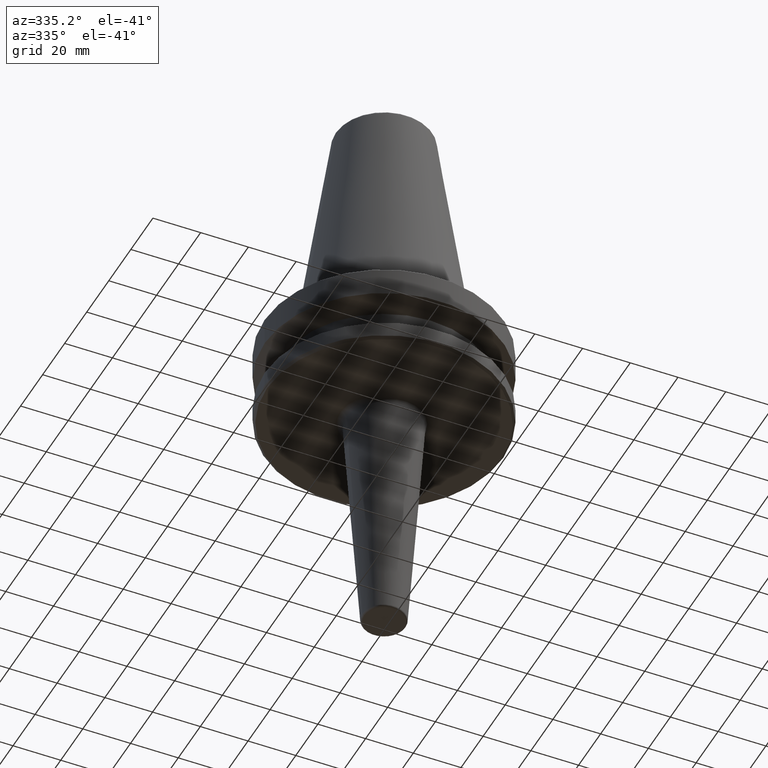
[diagram: clean part render]
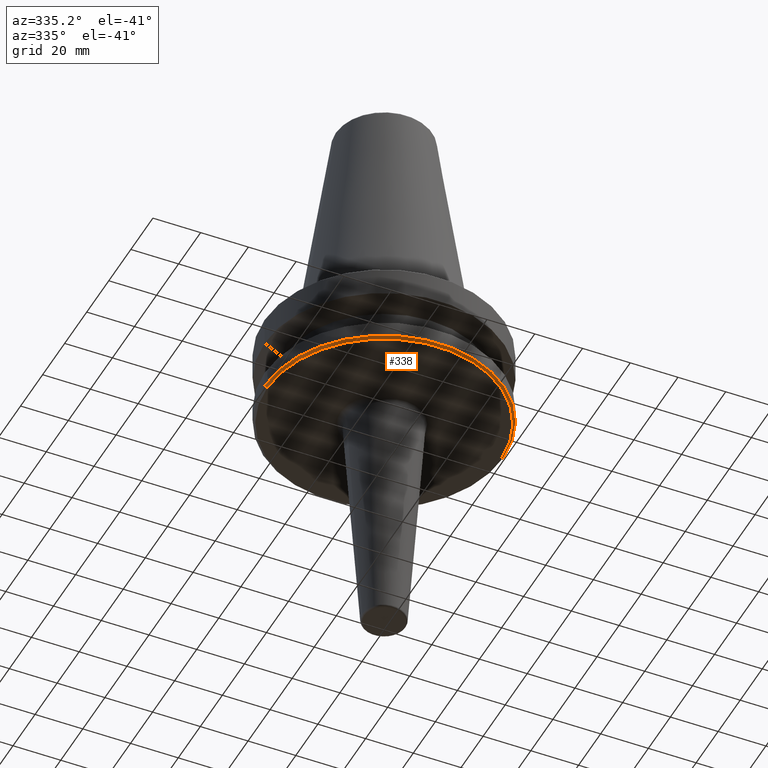
[diagram: same view with one face highlighted and labeled with its STEP entity id]
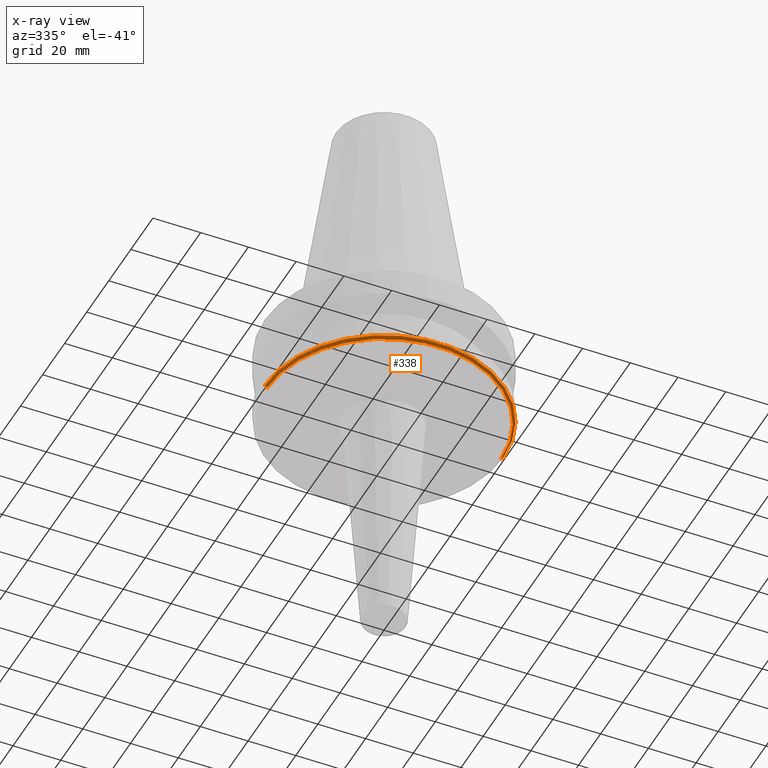
[diagram: x-ray of the same camera — body ghosted, the highlighted face saturated]
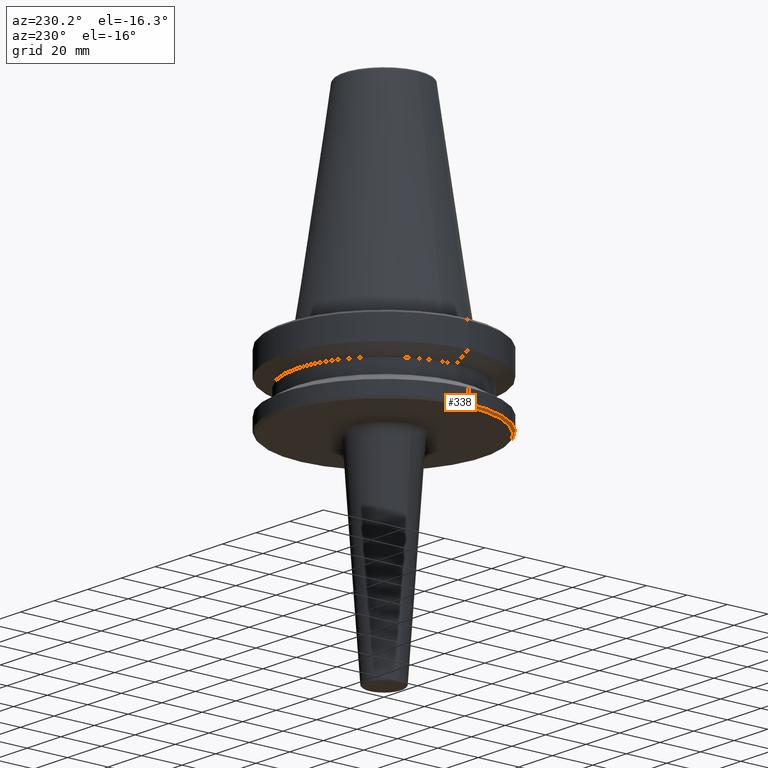
[diagram: same view with one face highlighted and labeled with its STEP entity id]
A machine part, auxiliary view. The second image highlights one B-rep face of the part: STEP entity #338.
The next image is the same camera in x-ray: the body ghosted, the highlighted face saturated — about 0% of this face is hidden behind the body in this view.
A second angle (auxiliary view) of the same face is appended — the face is thin or edge-on in the first view.
In plain terms, the highlighted conical surface has half-angle 45 deg.
Its self-contained STEP definition (entity closure, byte-faithful):
#44 = DIRECTION ( 'NONE',  ( 1.000000000000000000, 0.0000000000000000000, 0.0000000000000000000 ) ) ;
#51 = DIRECTION ( 'NONE',  ( -0.7071067811865474600, 8.659560562354931600E-017, 0.7071067811865475700 ) ) ;
#75 = CARTESIAN_POINT ( 'NONE',  ( 0.0000000000000000000, 0.0000000000000000000, -38.00000000000002100 ) ) ;
#85 = AXIS2_PLACEMENT_3D ( 'NONE', #850, #197, #228 ) ;
#92 = CARTESIAN_POINT ( 'NONE',  ( -49.00000000000000000, 6.062001655779398500E-015, -38.00000000000002100 ) ) ;
#94 = FACE_OUTER_BOUND ( 'NONE', #416, .T. ) ;
#128 = CARTESIAN_POINT ( 'NONE',  ( 50.00000000000000000, 0.0000000000000000000, -37.00000000000002100 ) ) ;
#172 = VERTEX_POINT ( 'NONE', #588 ) ;
#182 = CIRCLE ( 'NONE', #363, 49.00000000000000000 ) ;
#187 = DIRECTION ( 'NONE',  ( -0.0000000000000000000, -0.0000000000000000000, 1.000000000000000000 ) ) ;
#197 = DIRECTION ( 'NONE',  ( -0.0000000000000000000, -0.0000000000000000000, 1.000000000000000000 ) ) ;
#220 = CARTESIAN_POINT ( 'NONE',  ( 0.0000000000000000000, 0.0000000000000000000, -38.00000000000002100 ) ) ;
#228 = DIRECTION ( 'NONE',  ( 1.000000000000000000, 0.0000000000000000000, 0.0000000000000000000 ) ) ;
#250 = EDGE_CURVE ( 'NONE', #262, #632, #732, .T. ) ;
#262 = VERTEX_POINT ( 'NONE', #92 ) ;
#303 = ORIENTED_EDGE ( 'NONE', *, *, #250, .F. ) ;
#313 = AXIS2_PLACEMENT_3D ( 'NONE', #75, #187, #954 ) ;
#338 = ADVANCED_FACE ( 'NONE', ( #94 ), #623, .T. ) ;
#346 = EDGE_CURVE ( 'NONE', #262, #172, #182, .T. ) ;
#363 = AXIS2_PLACEMENT_3D ( 'NONE', #220, #652, #44 ) ;
#393 = CARTESIAN_POINT ( 'NONE',  ( 49.00000000000000000, 0.0000000000000000000, -38.00000000000002100 ) ) ;
#416 = EDGE_LOOP ( 'NONE', ( #303, #953, #676, #916 ) ) ;
#447 = LINE ( 'NONE', #393, #874 ) ;
#491 = EDGE_CURVE ( 'NONE', #632, #709, #504, .T. ) ;
#504 = CIRCLE ( 'NONE', #85, 50.00000000000000000 ) ;
#588 = CARTESIAN_POINT ( 'NONE',  ( 49.00000000000000000, 0.0000000000000000000, -38.00000000000002100 ) ) ;
#623 = CONICAL_SURFACE ( 'NONE', #313, 49.00000000000000000, 0.7853981633974482800 ) ;
#632 = VERTEX_POINT ( 'NONE', #763 ) ;
#652 = DIRECTION ( 'NONE',  ( -0.0000000000000000000, -0.0000000000000000000, 1.000000000000000000 ) ) ;
#676 = ORIENTED_EDGE ( 'NONE', *, *, #990, .T. ) ;
#706 = VECTOR ( 'NONE', #51, 1000.000000000000000 ) ;
#709 = VERTEX_POINT ( 'NONE', #128 ) ;
#732 = LINE ( 'NONE', #965, #706 ) ;
#763 = CARTESIAN_POINT ( 'NONE',  ( -50.00000000000000000, 6.123233995736766100E-015, -37.00000000000002100 ) ) ;
#850 = CARTESIAN_POINT ( 'NONE',  ( 0.0000000000000000000, 0.0000000000000000000, -37.00000000000002100 ) ) ;
#874 = VECTOR ( 'NONE', #946, 1000.000000000000000 ) ;
#916 = ORIENTED_EDGE ( 'NONE', *, *, #491, .F. ) ;
#946 = DIRECTION ( 'NONE',  ( 0.7071067811865474600, 0.0000000000000000000, 0.7071067811865475700 ) ) ;
#953 = ORIENTED_EDGE ( 'NONE', *, *, #346, .T. ) ;
#954 = DIRECTION ( 'NONE',  ( 1.000000000000000000, 0.0000000000000000000, 0.0000000000000000000 ) ) ;
#965 = CARTESIAN_POINT ( 'NONE',  ( -49.00000000000000000, 6.000769315822030900E-015, -38.00000000000002100 ) ) ;
#990 = EDGE_CURVE ( 'NONE', #172, #709, #447, .T. ) ;